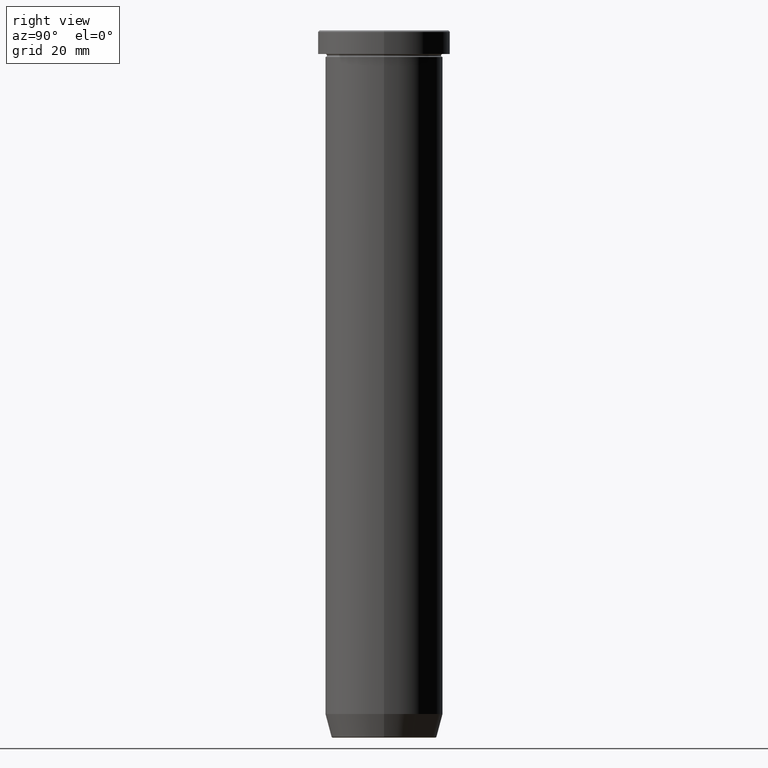
[diagram: clean part render]
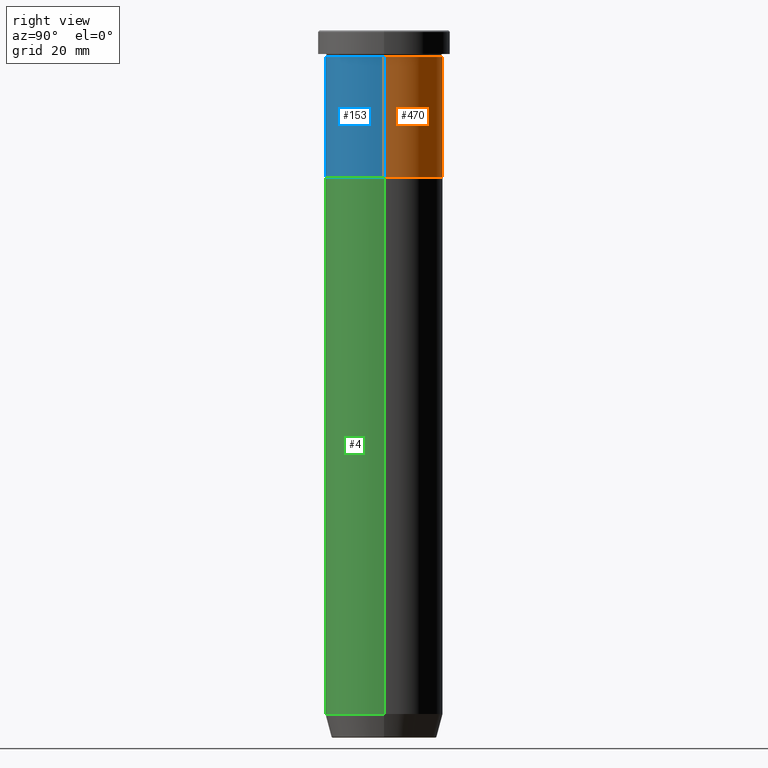
[diagram: same view with three faces highlighted in distinct colors, each labeled with its STEP entity id]
A machine part, right view with three faces highlighted in distinct colors.
Their STEP definitions:

[orange] entity #470 — the highlighted cylindrical surface (partial cylindrical patch) has radius 20 mm, axis along (-0, -0, 1).
#34 = EDGE_CURVE ( 'NONE', #518, #245, #132, .T. ) ;
#52 = DIRECTION ( 'NONE',  ( -0.000000000000000000, -0.000000000000000000, 1.000000000000000000 ) ) ;
#60 = AXIS2_PLACEMENT_3D ( 'NONE', #336, #253, #442 ) ;
#62 = CARTESIAN_POINT ( 'NONE',  ( -20.00000000000000000, 2.449293598294706513E-15, -8.999999999999998224 ) ) ;
#74 = FACE_OUTER_BOUND ( 'NONE', #275, .T. ) ;
#81 = CARTESIAN_POINT ( 'NONE',  ( 20.00000000000000000, 0.000000000000000000, -8.999999999999998224 ) ) ;
#93 = ORIENTED_EDGE ( 'NONE', *, *, #34, .F. ) ;
#129 = DIRECTION ( 'NONE',  ( -0.000000000000000000, -0.000000000000000000, 1.000000000000000000 ) ) ;
#132 = LINE ( 'NONE', #190, #546 ) ;
#133 = ORIENTED_EDGE ( 'NONE', *, *, #312, .T. ) ;
#146 = EDGE_CURVE ( 'NONE', #245, #469, #193, .T. ) ;
#172 = CARTESIAN_POINT ( 'NONE',  ( -20.00000000000000000, 2.449293598294706513E-15, -50.00000000000000000 ) ) ;
#179 = CARTESIAN_POINT ( 'NONE',  ( -20.00000000000000000, 2.449293598294706513E-15, 0.000000000000000000 ) ) ;
#190 = CARTESIAN_POINT ( 'NONE',  ( 20.00000000000000000, 0.000000000000000000, 0.000000000000000000 ) ) ;
#193 = CIRCLE ( 'NONE', #528, 20.00000000000000000 ) ;
#216 = EDGE_CURVE ( 'NONE', #518, #295, #492, .T. ) ;
#227 = AXIS2_PLACEMENT_3D ( 'NONE', #229, #463, #232 ) ;
#229 = CARTESIAN_POINT ( 'NONE',  ( 0.000000000000000000, 0.000000000000000000, -50.00000000000000000 ) ) ;
#232 = DIRECTION ( 'NONE',  ( 1.000000000000000000, 0.000000000000000000, 0.000000000000000000 ) ) ;
#245 = VERTEX_POINT ( 'NONE', #81 ) ;
#249 = CYLINDRICAL_SURFACE ( 'NONE', #60, 20.00000000000000000 ) ;
#253 = DIRECTION ( 'NONE',  ( -0.000000000000000000, -0.000000000000000000, 1.000000000000000000 ) ) ;
#275 = EDGE_LOOP ( 'NONE', ( #386, #133, #501, #93 ) ) ;
#281 = DIRECTION ( 'NONE',  ( -0.000000000000000000, -0.000000000000000000, 1.000000000000000000 ) ) ;
#295 = VERTEX_POINT ( 'NONE', #172 ) ;
#312 = EDGE_CURVE ( 'NONE', #295, #469, #414, .T. ) ;
#327 = DIRECTION ( 'NONE',  ( 1.000000000000000000, 0.000000000000000000, 0.000000000000000000 ) ) ;
#336 = CARTESIAN_POINT ( 'NONE',  ( 0.000000000000000000, 0.000000000000000000, 0.000000000000000000 ) ) ;
#375 = VECTOR ( 'NONE', #129, 1000.000000000000000 ) ;
#386 = ORIENTED_EDGE ( 'NONE', *, *, #216, .T. ) ;
#414 = LINE ( 'NONE', #179, #375 ) ;
#421 = CARTESIAN_POINT ( 'NONE',  ( 0.000000000000000000, 0.000000000000000000, -8.999999999999998224 ) ) ;
#442 = DIRECTION ( 'NONE',  ( 1.000000000000000000, 0.000000000000000000, 0.000000000000000000 ) ) ;
#463 = DIRECTION ( 'NONE',  ( -0.000000000000000000, -0.000000000000000000, 1.000000000000000000 ) ) ;
#469 = VERTEX_POINT ( 'NONE', #62 ) ;
#470 = ADVANCED_FACE ( 'NONE', ( #74 ), #249, .T. ) ;
#492 = CIRCLE ( 'NONE', #227, 20.00000000000000000 ) ;
#501 = ORIENTED_EDGE ( 'NONE', *, *, #146, .F. ) ;
#518 = VERTEX_POINT ( 'NONE', #560 ) ;
#528 = AXIS2_PLACEMENT_3D ( 'NONE', #421, #281, #327 ) ;
#546 = VECTOR ( 'NONE', #52, 1000.000000000000000 ) ;
#560 = CARTESIAN_POINT ( 'NONE',  ( 20.00000000000000000, 0.000000000000000000, -50.00000000000000000 ) ) ;

[blue] entity #153 — the highlighted cylindrical surface (partial cylindrical patch) has radius 20 mm, axis along (-0, -0, 1).
#1 = DIRECTION ( 'NONE',  ( 1.000000000000000000, 0.000000000000000000, 0.000000000000000000 ) ) ;
#14 = EDGE_LOOP ( 'NONE', ( #440, #342, #324, #197 ) ) ;
#27 = DIRECTION ( 'NONE',  ( 1.000000000000000000, 0.000000000000000000, 0.000000000000000000 ) ) ;
#34 = EDGE_CURVE ( 'NONE', #518, #245, #132, .T. ) ;
#52 = DIRECTION ( 'NONE',  ( -0.000000000000000000, -0.000000000000000000, 1.000000000000000000 ) ) ;
#62 = CARTESIAN_POINT ( 'NONE',  ( -20.00000000000000000, 2.449293598294706513E-15, -8.999999999999998224 ) ) ;
#81 = CARTESIAN_POINT ( 'NONE',  ( 20.00000000000000000, 0.000000000000000000, -8.999999999999998224 ) ) ;
#101 = CIRCLE ( 'NONE', #194, 20.00000000000000000 ) ;
#129 = DIRECTION ( 'NONE',  ( -0.000000000000000000, -0.000000000000000000, 1.000000000000000000 ) ) ;
#132 = LINE ( 'NONE', #190, #546 ) ;
#153 = ADVANCED_FACE ( 'NONE', ( #521 ), #196, .T. ) ;
#172 = CARTESIAN_POINT ( 'NONE',  ( -20.00000000000000000, 2.449293598294706513E-15, -50.00000000000000000 ) ) ;
#179 = CARTESIAN_POINT ( 'NONE',  ( -20.00000000000000000, 2.449293598294706513E-15, 0.000000000000000000 ) ) ;
#190 = CARTESIAN_POINT ( 'NONE',  ( 20.00000000000000000, 0.000000000000000000, 0.000000000000000000 ) ) ;
#191 = DIRECTION ( 'NONE',  ( -0.000000000000000000, -0.000000000000000000, 1.000000000000000000 ) ) ;
#194 = AXIS2_PLACEMENT_3D ( 'NONE', #341, #566, #27 ) ;
#196 = CYLINDRICAL_SURFACE ( 'NONE', #522, 20.00000000000000000 ) ;
#197 = ORIENTED_EDGE ( 'NONE', *, *, #359, .F. ) ;
#203 = CARTESIAN_POINT ( 'NONE',  ( 0.000000000000000000, 0.000000000000000000, 0.000000000000000000 ) ) ;
#221 = EDGE_CURVE ( 'NONE', #295, #518, #406, .T. ) ;
#245 = VERTEX_POINT ( 'NONE', #81 ) ;
#287 = DIRECTION ( 'NONE',  ( 1.000000000000000000, 0.000000000000000000, 0.000000000000000000 ) ) ;
#295 = VERTEX_POINT ( 'NONE', #172 ) ;
#312 = EDGE_CURVE ( 'NONE', #295, #469, #414, .T. ) ;
#324 = ORIENTED_EDGE ( 'NONE', *, *, #34, .T. ) ;
#341 = CARTESIAN_POINT ( 'NONE',  ( 0.000000000000000000, 0.000000000000000000, -8.999999999999998224 ) ) ;
#342 = ORIENTED_EDGE ( 'NONE', *, *, #221, .T. ) ;
#359 = EDGE_CURVE ( 'NONE', #469, #245, #101, .T. ) ;
#374 = DIRECTION ( 'NONE',  ( -0.000000000000000000, -0.000000000000000000, 1.000000000000000000 ) ) ;
#375 = VECTOR ( 'NONE', #129, 1000.000000000000000 ) ;
#406 = CIRCLE ( 'NONE', #481, 20.00000000000000000 ) ;
#414 = LINE ( 'NONE', #179, #375 ) ;
#422 = CARTESIAN_POINT ( 'NONE',  ( 0.000000000000000000, 0.000000000000000000, -50.00000000000000000 ) ) ;
#440 = ORIENTED_EDGE ( 'NONE', *, *, #312, .F. ) ;
#469 = VERTEX_POINT ( 'NONE', #62 ) ;
#481 = AXIS2_PLACEMENT_3D ( 'NONE', #422, #191, #1 ) ;
#518 = VERTEX_POINT ( 'NONE', #560 ) ;
#521 = FACE_OUTER_BOUND ( 'NONE', #14, .T. ) ;
#522 = AXIS2_PLACEMENT_3D ( 'NONE', #203, #374, #287 ) ;
#546 = VECTOR ( 'NONE', #52, 1000.000000000000000 ) ;
#560 = CARTESIAN_POINT ( 'NONE',  ( 20.00000000000000000, 0.000000000000000000, -50.00000000000000000 ) ) ;
#566 = DIRECTION ( 'NONE',  ( -0.000000000000000000, -0.000000000000000000, 1.000000000000000000 ) ) ;

[green] entity #4 — the highlighted cylindrical surface (partial cylindrical patch) has radius 20 mm, axis along (-0, -0, 1).
#4 = ADVANCED_FACE ( 'NONE', ( #82 ), #266, .T. ) ;
#5 = AXIS2_PLACEMENT_3D ( 'NONE', #219, #407, #364 ) ;
#11 = ORIENTED_EDGE ( 'NONE', *, *, #558, .T. ) ;
#35 = AXIS2_PLACEMENT_3D ( 'NONE', #391, #434, #428 ) ;
#36 = CIRCLE ( 'NONE', #5, 20.00000000000000000 ) ;
#61 = ORIENTED_EDGE ( 'NONE', *, *, #259, .F. ) ;
#71 = CARTESIAN_POINT ( 'NONE',  ( 0.000000000000000000, 0.000000000000000000, 0.000000000000000000 ) ) ;
#82 = FACE_OUTER_BOUND ( 'NONE', #524, .T. ) ;
#88 = CARTESIAN_POINT ( 'NONE',  ( -20.00000000000000355, 2.449293598294706907E-15, -231.9999999999999716 ) ) ;
#125 = VECTOR ( 'NONE', #520, 1000.000000000000000 ) ;
#205 = VERTEX_POINT ( 'NONE', #278 ) ;
#214 = ORIENTED_EDGE ( 'NONE', *, *, #579, .F. ) ;
#219 = CARTESIAN_POINT ( 'NONE',  ( 0.000000000000000000, 0.000000000000000000, -50.00000000000000000 ) ) ;
#259 = EDGE_CURVE ( 'NONE', #288, #380, #36, .T. ) ;
#262 = DIRECTION ( 'NONE',  ( -0.000000000000000000, -0.000000000000000000, 1.000000000000000000 ) ) ;
#266 = CYLINDRICAL_SURFACE ( 'NONE', #499, 20.00000000000000355 ) ;
#278 = CARTESIAN_POINT ( 'NONE',  ( 20.00000000000000355, 0.000000000000000000, -231.9999999999999716 ) ) ;
#288 = VERTEX_POINT ( 'NONE', #587 ) ;
#293 = ORIENTED_EDGE ( 'NONE', *, *, #475, .T. ) ;
#331 = VERTEX_POINT ( 'NONE', #88 ) ;
#362 = CARTESIAN_POINT ( 'NONE',  ( 20.00000000000000355, 0.000000000000000000, 0.000000000000000000 ) ) ;
#364 = DIRECTION ( 'NONE',  ( 1.000000000000000000, 0.000000000000000000, 0.000000000000000000 ) ) ;
#365 = LINE ( 'NONE', #362, #554 ) ;
#380 = VERTEX_POINT ( 'NONE', #398 ) ;
#391 = CARTESIAN_POINT ( 'NONE',  ( 0.000000000000000000, 0.000000000000000000, -231.9999999999999716 ) ) ;
#398 = CARTESIAN_POINT ( 'NONE',  ( 20.00000000000000000, 0.000000000000000000, -50.00000000000000000 ) ) ;
#407 = DIRECTION ( 'NONE',  ( -0.000000000000000000, -0.000000000000000000, 1.000000000000000000 ) ) ;
#408 = DIRECTION ( 'NONE',  ( -0.000000000000000000, -0.000000000000000000, 1.000000000000000000 ) ) ;
#409 = DIRECTION ( 'NONE',  ( 1.000000000000000000, 0.000000000000000000, 0.000000000000000000 ) ) ;
#428 = DIRECTION ( 'NONE',  ( 1.000000000000000000, 0.000000000000000000, 0.000000000000000000 ) ) ;
#434 = DIRECTION ( 'NONE',  ( -0.000000000000000000, -0.000000000000000000, 1.000000000000000000 ) ) ;
#475 = EDGE_CURVE ( 'NONE', #205, #380, #365, .T. ) ;
#476 = LINE ( 'NONE', #568, #125 ) ;
#483 = CIRCLE ( 'NONE', #35, 20.00000000000000355 ) ;
#499 = AXIS2_PLACEMENT_3D ( 'NONE', #71, #262, #409 ) ;
#520 = DIRECTION ( 'NONE',  ( -0.000000000000000000, -0.000000000000000000, 1.000000000000000000 ) ) ;
#524 = EDGE_LOOP ( 'NONE', ( #214, #11, #293, #61 ) ) ;
#554 = VECTOR ( 'NONE', #408, 1000.000000000000000 ) ;
#558 = EDGE_CURVE ( 'NONE', #331, #205, #483, .T. ) ;
#568 = CARTESIAN_POINT ( 'NONE',  ( -20.00000000000000355, 2.449293598294706907E-15, 0.000000000000000000 ) ) ;
#579 = EDGE_CURVE ( 'NONE', #331, #288, #476, .T. ) ;
#587 = CARTESIAN_POINT ( 'NONE',  ( -20.00000000000000000, 2.449293598294706513E-15, -50.00000000000000000 ) ) ;